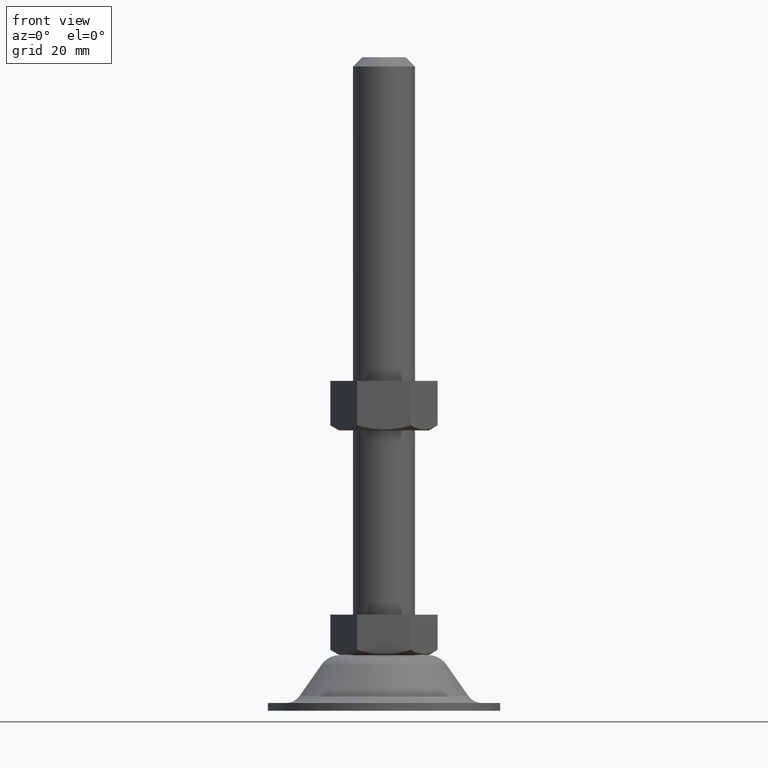
[diagram: clean part render]
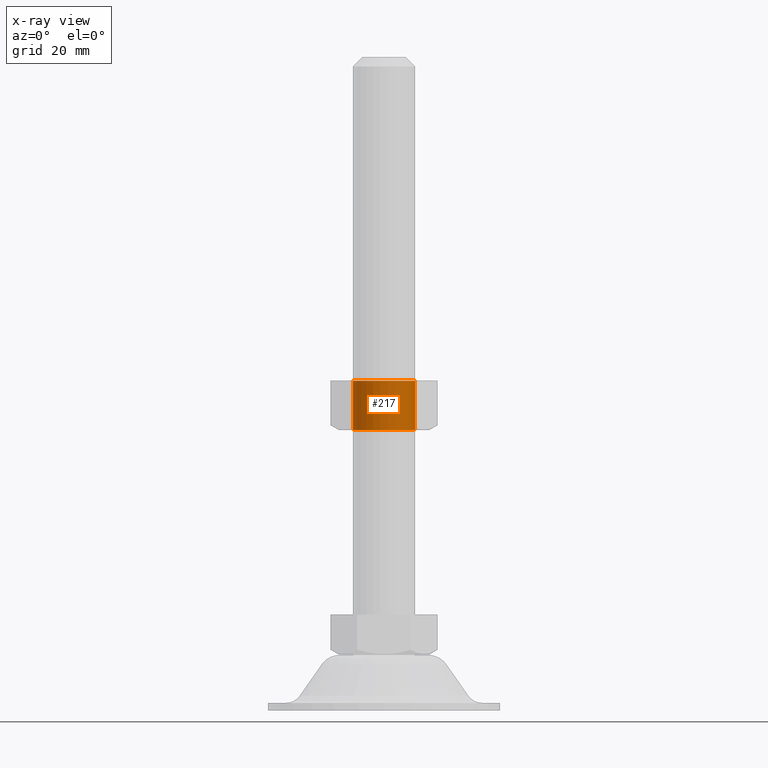
[diagram: x-ray — body ghosted, one internal face saturated and labeled with its STEP entity id]
A machine part, front view, then the same camera in x-ray: the body is ghosted and one INTERNAL B-rep face — a face not visible from any outside direction — is saturated and labeled: STEP entity #217.
In plain terms, the highlighted cylindrical surface (edge-blend (fillet) strip) has radius 10 mm, axis along (0, 0, -1).
Its self-contained STEP definition (entity closure, byte-faithful):
#217=ADVANCED_FACE('',(#928),#927,.F.);
#927=CYLINDRICAL_SURFACE('',#1604,1.00000000000E+01);
#928=FACE_OUTER_BOUND('',#1605,.T.);
#1601=CARTESIAN_POINT('',(0.00000000000E+00,0.00000000000E+00,-9.24500000067E+02));
#1602=DIRECTION('',(-0.00000000000E+00,0.00000000000E+00,-1.00000000000E+00));
#1603=DIRECTION('',(1.00000000000E+00,1.22464679915E-16,0.00000000000E+00));
#1604=AXIS2_PLACEMENT_3D('',#1601,#1602,#1603);
#1605=EDGE_LOOP('',(#2155,#2156,#2157,#2158));
#2155=ORIENTED_EDGE('',*,*,#2406,.T.);
#2156=ORIENTED_EDGE('',*,*,#2409,.T.);
#2157=ORIENTED_EDGE('',*,*,#2403,.F.);
#2158=ORIENTED_EDGE('',*,*,#2410,.F.);
#2403=EDGE_CURVE('',#3515,#3516,#3517,.T.);
#2406=EDGE_CURVE('',#3530,#3529,#3537,.T.);
#2409=EDGE_CURVE('',#3529,#3516,#3555,.T.);
#2410=EDGE_CURVE('',#3530,#3515,#3561,.T.);
#3515=VERTEX_POINT('',#4605);
#3516=VERTEX_POINT('',#4606);
#3517=CIRCLE('',#4610,1.00000000000E+01);
#3529=VERTEX_POINT('',#4615);
#3530=VERTEX_POINT('',#4616);
#3537=CIRCLE('',#4624,1.00000000000E+01);
#3555=(BOUNDED_CURVE() B_SPLINE_CURVE(1,(#4629,#4630),.UNSPECIFIED.,.F.,.F.) B_SPLINE_CURVE_WITH_KNOTS((2,2),(8.33333328360E-02,9.16666665505E-01),.UNSPECIFIED.) CURVE() GEOMETRIC_REPRESENTATION_ITEM() RATIONAL_B_SPLINE_CURVE((1.00000000000E+00,1.00000000000E+00)) REPRESENTATION_ITEM('') );
#3561=(BOUNDED_CURVE() B_SPLINE_CURVE(1,(#4631,#4632),.UNSPECIFIED.,.F.,.F.) B_SPLINE_CURVE_WITH_KNOTS((2,2),(8.33333333333E-02,9.16666666667E-01),.UNSPECIFIED.) CURVE() GEOMETRIC_REPRESENTATION_ITEM() RATIONAL_B_SPLINE_CURVE((7.50000000000E-01,7.50000000000E-01)) REPRESENTATION_ITEM('') );
#4605=CARTESIAN_POINT('',(-1.00000000000E+01,0.00000000000E+00,5.94999999330E+01));
#4606=CARTESIAN_POINT('',(1.00000000000E+01,1.18423789293E-15,5.94999999330E+01));
#4607=CARTESIAN_POINT('',(0.00000000000E+00,0.00000000000E+00,5.94999999330E+01));
#4608=DIRECTION('',(0.00000000000E+00,0.00000000000E+00,1.00000000000E+00));
#4609=DIRECTION('',(-1.00000000000E+00,-1.22460635382E-16,0.00000000000E+00));
#4610=AXIS2_PLACEMENT_3D('',#4607,#4608,#4609);
#4615=CARTESIAN_POINT('',(1.00000000000E+01,1.18423789293E-15,7.54999999330E+01));
#4616=CARTESIAN_POINT('',(-1.00000000000E+01,0.00000000000E+00,7.54999999330E+01));
#4621=CARTESIAN_POINT('',(0.00000000000E+00,0.00000000000E+00,7.54999999330E+01));
#4622=DIRECTION('',(0.00000000000E+00,0.00000000000E+00,1.00000000000E+00));
#4623=DIRECTION('',(-1.00000000000E+00,-1.22460635382E-16,0.00000000000E+00));
#4624=AXIS2_PLACEMENT_3D('',#4621,#4622,#4623);
#4629=CARTESIAN_POINT('',(1.00000000000E+01,1.22464679915E-15,7.54999999425E+01));
#4630=CARTESIAN_POINT('',(1.00000000000E+01,1.22464679915E-15,5.94999999553E+01));
#4631=CARTESIAN_POINT('',(-1.00000000000E+01,-5.92118946467E-16,7.54999999330E+01));
#4632=CARTESIAN_POINT('',(-1.00000000000E+01,-5.92118946467E-16,5.94999999330E+01));